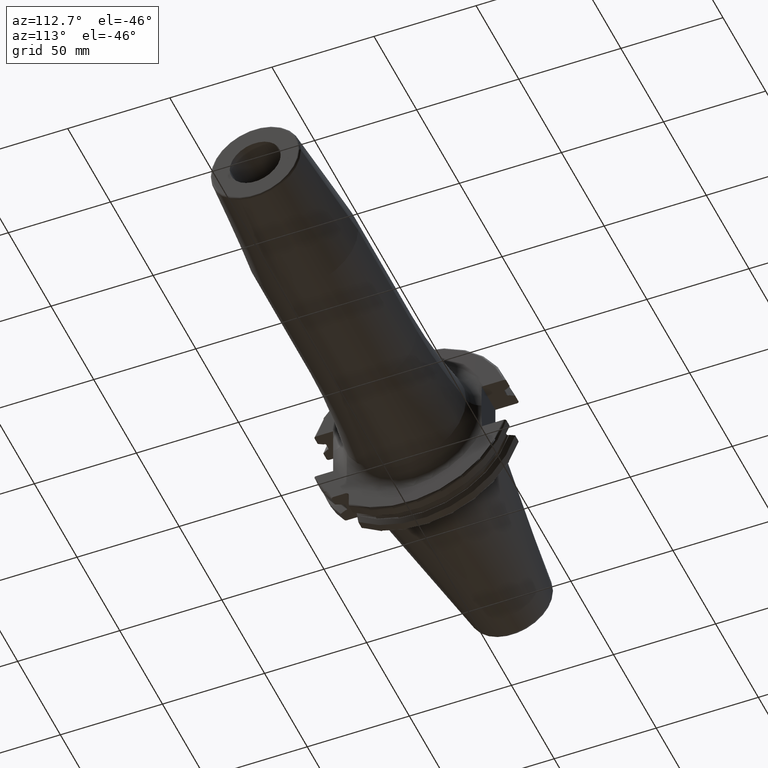
[diagram: clean part render]
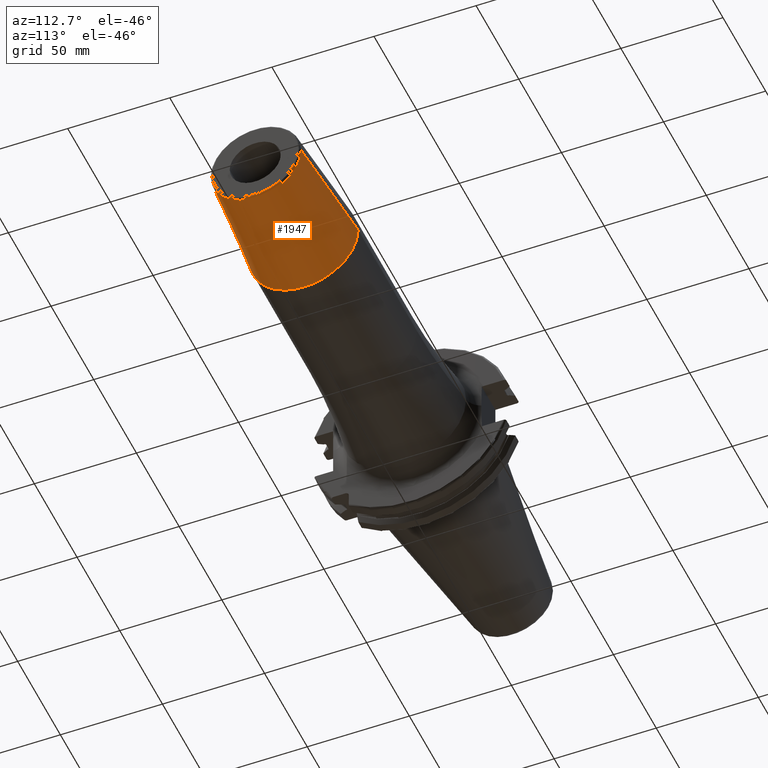
[diagram: same view with one face highlighted and labeled with its STEP entity id]
A machine part, auxiliary view. The second image highlights one B-rep face of the part: STEP entity #1947.
In plain terms, the highlighted conical surface has half-angle 4.5 deg.
Its self-contained STEP definition (entity closure, byte-faithful):
#259=CARTESIAN_POINT('',(1.428220786872E2,0.E0,0.E0));
#260=DIRECTION('',(-1.E0,0.E0,0.E0));
#261=DIRECTION('',(0.E0,1.E0,0.E0));
#262=AXIS2_PLACEMENT_3D('',#259,#260,#261);
#293=CARTESIAN_POINT('',(1.990784590957E2,0.E0,0.E0));
#294=DIRECTION('',(-1.E0,0.E0,0.E0));
#295=DIRECTION('',(0.E0,1.E0,0.E0));
#296=AXIS2_PLACEMENT_3D('',#293,#294,#295);
#298=DIRECTION('',(-9.969173337331E-1,7.845909572784E-2,1.946935536594E-14));
#299=VECTOR('',#298,5.643033630266E1);
#300=CARTESIAN_POINT('',(1.990784590957E2,2.207252684207E1,
-1.095416956878E-12));
#301=LINE('',#300,#299);
#302=DIRECTION('',(-9.969173337331E-1,-7.845909572784E-2,-1.937056744981E-14));
#303=VECTOR('',#302,5.643033630266E1);
#304=CARTESIAN_POINT('',(1.990784590957E2,-2.207252684207E1,
1.089842321548E-12));
#305=LINE('',#304,#303);
#1490=CARTESIAN_POINT('',(1.428220786872E2,2.65E1,0.E0));
#1491=CARTESIAN_POINT('',(1.428220786872E2,-2.65E1,0.E0));
#1492=VERTEX_POINT('',#1490);
#1493=VERTEX_POINT('',#1491);
#1494=CARTESIAN_POINT('',(1.990784590957E2,2.207252684207E1,0.E0));
#1495=CARTESIAN_POINT('',(1.990784590957E2,-2.207252684207E1,0.E0));
#1496=VERTEX_POINT('',#1494);
#1497=VERTEX_POINT('',#1495);
#1936=CARTESIAN_POINT('',(1.709502688915E2,0.E0,0.E0));
#1937=DIRECTION('',(-1.E0,0.E0,0.E0));
#1938=DIRECTION('',(0.E0,1.E0,0.E0));
#1939=AXIS2_PLACEMENT_3D('',#1936,#1937,#1938);
#1940=CONICAL_SURFACE('',#1939,2.428626342104E1,4.5E0);
#1941=ORIENTED_EDGE('',*,*,#1927,.F.);
#1942=ORIENTED_EDGE('',*,*,#1902,.T.);
#1943=ORIENTED_EDGE('',*,*,#1872,.T.);
#1944=ORIENTED_EDGE('',*,*,#1899,.F.);
#1945=EDGE_LOOP('',(#1941,#1942,#1943,#1944));
#1946=FACE_OUTER_BOUND('',#1945,.F.);
#1947=ADVANCED_FACE('',(#1946),#1940,.T.);
#263=CIRCLE('',#262,2.65E1);
#297=CIRCLE('',#296,2.207252684207E1);
#1872=EDGE_CURVE('',#1492,#1493,#263,.T.);
#1899=EDGE_CURVE('',#1497,#1493,#305,.T.);
#1902=EDGE_CURVE('',#1496,#1492,#301,.T.);
#1927=EDGE_CURVE('',#1496,#1497,#297,.T.);